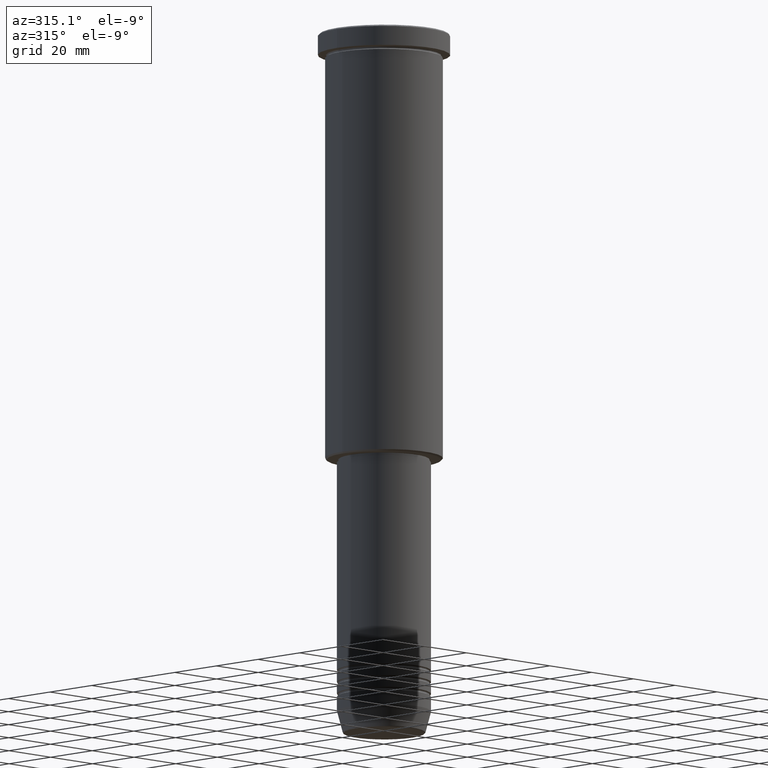
[diagram: clean part render]
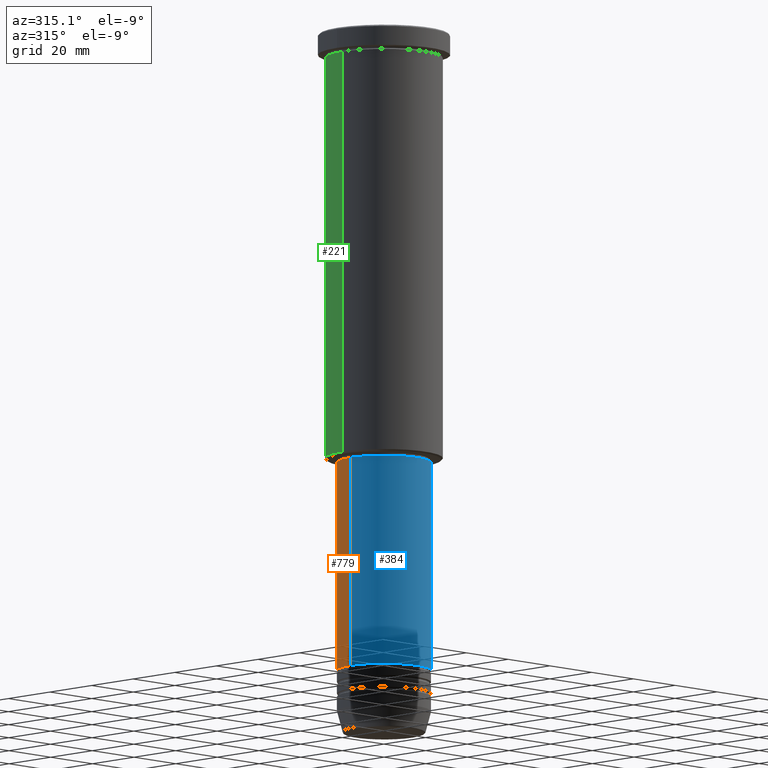
[diagram: same view with three faces highlighted in distinct colors, each labeled with its STEP entity id]
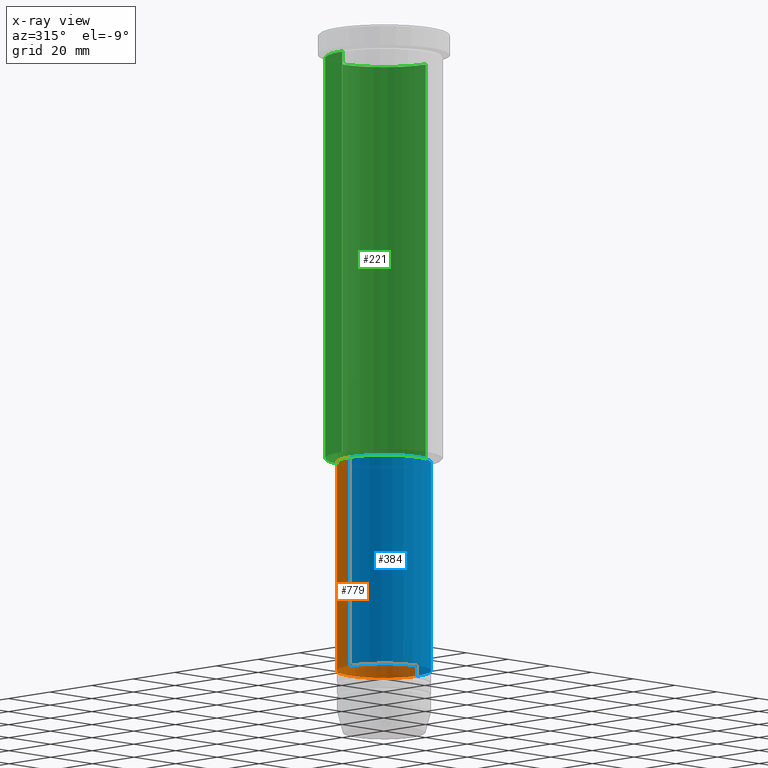
[diagram: x-ray of the same camera — body ghosted, the three highlighted faces saturated]
A machine part, auxiliary view with three faces highlighted in distinct colors.
The next image is the same camera in x-ray (body ghosted, the three faces saturated) — at least one of them is partly hidden behind the body in this view.
Their STEP definitions:

[orange] entity #779 — the highlighted cylindrical surface (partial cylindrical patch) has radius 16 mm, axis along (-0, -0, 1).
#25 = EDGE_CURVE ( 'NONE', #817, #1045, #538, .T. ) ;
#38 = DIRECTION ( 'NONE',  ( -0.000000000000000000, -0.000000000000000000, 1.000000000000000000 ) ) ;
#67 = DIRECTION ( 'NONE',  ( 1.000000000000000000, 0.000000000000000000, 0.000000000000000000 ) ) ;
#85 = CARTESIAN_POINT ( 'NONE',  ( 16.00000000000000000, 0.000000000000000000, -147.0000000000000000 ) ) ;
#96 = ORIENTED_EDGE ( 'NONE', *, *, #627, .F. ) ;
#97 = CIRCLE ( 'NONE', #331, 16.00000000000000000 ) ;
#129 = CARTESIAN_POINT ( 'NONE',  ( 0.000000000000000000, 0.000000000000000000, -147.0000000000000000 ) ) ;
#211 = DIRECTION ( 'NONE',  ( -0.000000000000000000, -0.000000000000000000, 1.000000000000000000 ) ) ;
#231 = CARTESIAN_POINT ( 'NONE',  ( -16.00000000000000000, 1.959434878635765131E-15, -147.0000000000000000 ) ) ;
#255 = AXIS2_PLACEMENT_3D ( 'NONE', #1012, #211, #563 ) ;
#266 = CARTESIAN_POINT ( 'NONE',  ( 16.00000000000000000, 0.000000000000000000, 0.000000000000000000 ) ) ;
#326 = EDGE_CURVE ( 'NONE', #1008, #1045, #97, .T. ) ;
#331 = AXIS2_PLACEMENT_3D ( 'NONE', #129, #38, #505 ) ;
#361 = ORIENTED_EDGE ( 'NONE', *, *, #326, .F. ) ;
#362 = CARTESIAN_POINT ( 'NONE',  ( -16.00000000000000000, 1.959434878635765131E-15, 0.000000000000000000 ) ) ;
#403 = LINE ( 'NONE', #266, #1171 ) ;
#451 = CARTESIAN_POINT ( 'NONE',  ( -16.00000000000000000, 1.959434878635765131E-15, -218.5000000000000000 ) ) ;
#505 = DIRECTION ( 'NONE',  ( 1.000000000000000000, 0.000000000000000000, 0.000000000000000000 ) ) ;
#513 = CARTESIAN_POINT ( 'NONE',  ( 16.00000000000000000, 0.000000000000000000, -218.5000000000000000 ) ) ;
#538 = LINE ( 'NONE', #362, #736 ) ;
#563 = DIRECTION ( 'NONE',  ( 1.000000000000000000, 0.000000000000000000, 0.000000000000000000 ) ) ;
#568 = ORIENTED_EDGE ( 'NONE', *, *, #25, .T. ) ;
#572 = EDGE_CURVE ( 'NONE', #761, #817, #1089, .T. ) ;
#627 = EDGE_CURVE ( 'NONE', #761, #1008, #403, .T. ) ;
#731 = DIRECTION ( 'NONE',  ( -0.000000000000000000, -0.000000000000000000, 1.000000000000000000 ) ) ;
#732 = EDGE_LOOP ( 'NONE', ( #861, #568, #361, #96 ) ) ;
#736 = VECTOR ( 'NONE', #731, 1000.000000000000000 ) ;
#761 = VERTEX_POINT ( 'NONE', #513 ) ;
#779 = ADVANCED_FACE ( 'NONE', ( #1060 ), #962, .T. ) ;
#817 = VERTEX_POINT ( 'NONE', #451 ) ;
#861 = ORIENTED_EDGE ( 'NONE', *, *, #572, .T. ) ;
#883 = CARTESIAN_POINT ( 'NONE',  ( 0.000000000000000000, 0.000000000000000000, 0.000000000000000000 ) ) ;
#938 = AXIS2_PLACEMENT_3D ( 'NONE', #883, #1068, #67 ) ;
#962 = CYLINDRICAL_SURFACE ( 'NONE', #938, 16.00000000000000000 ) ;
#984 = DIRECTION ( 'NONE',  ( -0.000000000000000000, -0.000000000000000000, 1.000000000000000000 ) ) ;
#1008 = VERTEX_POINT ( 'NONE', #85 ) ;
#1012 = CARTESIAN_POINT ( 'NONE',  ( 0.000000000000000000, 0.000000000000000000, -218.5000000000000000 ) ) ;
#1045 = VERTEX_POINT ( 'NONE', #231 ) ;
#1060 = FACE_OUTER_BOUND ( 'NONE', #732, .T. ) ;
#1068 = DIRECTION ( 'NONE',  ( -0.000000000000000000, -0.000000000000000000, 1.000000000000000000 ) ) ;
#1089 = CIRCLE ( 'NONE', #255, 16.00000000000000000 ) ;
#1171 = VECTOR ( 'NONE', #984, 1000.000000000000000 ) ;

[blue] entity #384 — the highlighted cylindrical surface (partial cylindrical patch) has radius 16 mm, axis along (-0, -0, 1).
#25 = EDGE_CURVE ( 'NONE', #817, #1045, #538, .T. ) ;
#85 = CARTESIAN_POINT ( 'NONE',  ( 16.00000000000000000, 0.000000000000000000, -147.0000000000000000 ) ) ;
#122 = ORIENTED_EDGE ( 'NONE', *, *, #627, .T. ) ;
#138 = DIRECTION ( 'NONE',  ( 1.000000000000000000, 0.000000000000000000, 0.000000000000000000 ) ) ;
#142 = AXIS2_PLACEMENT_3D ( 'NONE', #1159, #344, #711 ) ;
#147 = DIRECTION ( 'NONE',  ( -0.000000000000000000, -0.000000000000000000, 1.000000000000000000 ) ) ;
#150 = ORIENTED_EDGE ( 'NONE', *, *, #641, .T. ) ;
#231 = CARTESIAN_POINT ( 'NONE',  ( -16.00000000000000000, 1.959434878635765131E-15, -147.0000000000000000 ) ) ;
#266 = CARTESIAN_POINT ( 'NONE',  ( 16.00000000000000000, 0.000000000000000000, 0.000000000000000000 ) ) ;
#344 = DIRECTION ( 'NONE',  ( -0.000000000000000000, -0.000000000000000000, 1.000000000000000000 ) ) ;
#350 = AXIS2_PLACEMENT_3D ( 'NONE', #498, #147, #138 ) ;
#362 = CARTESIAN_POINT ( 'NONE',  ( -16.00000000000000000, 1.959434878635765131E-15, 0.000000000000000000 ) ) ;
#384 = ADVANCED_FACE ( 'NONE', ( #602 ), #794, .T. ) ;
#403 = LINE ( 'NONE', #266, #1171 ) ;
#408 = CARTESIAN_POINT ( 'NONE',  ( 0.000000000000000000, 0.000000000000000000, -147.0000000000000000 ) ) ;
#451 = CARTESIAN_POINT ( 'NONE',  ( -16.00000000000000000, 1.959434878635765131E-15, -218.5000000000000000 ) ) ;
#493 = CIRCLE ( 'NONE', #142, 16.00000000000000000 ) ;
#495 = AXIS2_PLACEMENT_3D ( 'NONE', #408, #653, #780 ) ;
#498 = CARTESIAN_POINT ( 'NONE',  ( 0.000000000000000000, 0.000000000000000000, 0.000000000000000000 ) ) ;
#513 = CARTESIAN_POINT ( 'NONE',  ( 16.00000000000000000, 0.000000000000000000, -218.5000000000000000 ) ) ;
#537 = ORIENTED_EDGE ( 'NONE', *, *, #906, .F. ) ;
#538 = LINE ( 'NONE', #362, #736 ) ;
#552 = ORIENTED_EDGE ( 'NONE', *, *, #25, .F. ) ;
#602 = FACE_OUTER_BOUND ( 'NONE', #1023, .T. ) ;
#627 = EDGE_CURVE ( 'NONE', #761, #1008, #403, .T. ) ;
#641 = EDGE_CURVE ( 'NONE', #817, #761, #493, .T. ) ;
#653 = DIRECTION ( 'NONE',  ( -0.000000000000000000, -0.000000000000000000, 1.000000000000000000 ) ) ;
#711 = DIRECTION ( 'NONE',  ( 1.000000000000000000, 0.000000000000000000, 0.000000000000000000 ) ) ;
#731 = DIRECTION ( 'NONE',  ( -0.000000000000000000, -0.000000000000000000, 1.000000000000000000 ) ) ;
#736 = VECTOR ( 'NONE', #731, 1000.000000000000000 ) ;
#761 = VERTEX_POINT ( 'NONE', #513 ) ;
#780 = DIRECTION ( 'NONE',  ( 1.000000000000000000, 0.000000000000000000, 0.000000000000000000 ) ) ;
#794 = CYLINDRICAL_SURFACE ( 'NONE', #350, 16.00000000000000000 ) ;
#817 = VERTEX_POINT ( 'NONE', #451 ) ;
#906 = EDGE_CURVE ( 'NONE', #1045, #1008, #1039, .T. ) ;
#984 = DIRECTION ( 'NONE',  ( -0.000000000000000000, -0.000000000000000000, 1.000000000000000000 ) ) ;
#1008 = VERTEX_POINT ( 'NONE', #85 ) ;
#1023 = EDGE_LOOP ( 'NONE', ( #552, #150, #122, #537 ) ) ;
#1039 = CIRCLE ( 'NONE', #495, 16.00000000000000000 ) ;
#1045 = VERTEX_POINT ( 'NONE', #231 ) ;
#1159 = CARTESIAN_POINT ( 'NONE',  ( 0.000000000000000000, 0.000000000000000000, -218.5000000000000000 ) ) ;
#1171 = VECTOR ( 'NONE', #984, 1000.000000000000000 ) ;

[green] entity #221 — the highlighted cylindrical surface (partial cylindrical patch) has radius 20 mm, axis along (-0, -0, 1).
#36 = ORIENTED_EDGE ( 'NONE', *, *, #510, .F. ) ;
#37 = VERTEX_POINT ( 'NONE', #184 ) ;
#59 = CARTESIAN_POINT ( 'NONE',  ( 0.000000000000000000, 0.000000000000000000, 0.000000000000000000 ) ) ;
#134 = DIRECTION ( 'NONE',  ( 1.000000000000000000, 0.000000000000000000, 0.000000000000000000 ) ) ;
#137 = LINE ( 'NONE', #865, #162 ) ;
#148 = CARTESIAN_POINT ( 'NONE',  ( 20.00000000000000355, 0.000000000000000000, -145.5000000000000000 ) ) ;
#151 = EDGE_CURVE ( 'NONE', #1061, #797, #137, .T. ) ;
#162 = VECTOR ( 'NONE', #1136, 1000.000000000000000 ) ;
#184 = CARTESIAN_POINT ( 'NONE',  ( -20.00000000000000355, 2.449293598294706907E-15, -145.5000000000000000 ) ) ;
#221 = ADVANCED_FACE ( 'NONE', ( #247 ), #828, .T. ) ;
#247 = FACE_OUTER_BOUND ( 'NONE', #958, .T. ) ;
#252 = DIRECTION ( 'NONE',  ( -0.000000000000000000, -0.000000000000000000, 1.000000000000000000 ) ) ;
#298 = CIRCLE ( 'NONE', #435, 20.00000000000000000 ) ;
#321 = VERTEX_POINT ( 'NONE', #427 ) ;
#343 = CARTESIAN_POINT ( 'NONE',  ( 0.000000000000000000, 0.000000000000000000, -145.5000000000000000 ) ) ;
#355 = LINE ( 'NONE', #1160, #905 ) ;
#427 = CARTESIAN_POINT ( 'NONE',  ( -20.00000000000000000, 2.449293598294706513E-15, -7.999999999999994671 ) ) ;
#435 = AXIS2_PLACEMENT_3D ( 'NONE', #671, #1130, #134 ) ;
#510 = EDGE_CURVE ( 'NONE', #797, #321, #298, .T. ) ;
#521 = ORIENTED_EDGE ( 'NONE', *, *, #1161, .T. ) ;
#664 = DIRECTION ( 'NONE',  ( -0.000000000000000000, -0.000000000000000000, 1.000000000000000000 ) ) ;
#671 = CARTESIAN_POINT ( 'NONE',  ( 0.000000000000000000, 0.000000000000000000, -7.999999999999994671 ) ) ;
#690 = DIRECTION ( 'NONE',  ( -1.000000000000000000, 0.000000000000000000, 0.000000000000000000 ) ) ;
#694 = DIRECTION ( 'NONE',  ( 1.000000000000000000, 0.000000000000000000, 0.000000000000000000 ) ) ;
#745 = AXIS2_PLACEMENT_3D ( 'NONE', #343, #664, #690 ) ;
#797 = VERTEX_POINT ( 'NONE', #1156 ) ;
#825 = ORIENTED_EDGE ( 'NONE', *, *, #1044, .T. ) ;
#828 = CYLINDRICAL_SURFACE ( 'NONE', #951, 20.00000000000000355 ) ;
#856 = ORIENTED_EDGE ( 'NONE', *, *, #151, .F. ) ;
#865 = CARTESIAN_POINT ( 'NONE',  ( 20.00000000000000355, 0.000000000000000000, 0.000000000000000000 ) ) ;
#905 = VECTOR ( 'NONE', #252, 1000.000000000000000 ) ;
#951 = AXIS2_PLACEMENT_3D ( 'NONE', #59, #1178, #694 ) ;
#958 = EDGE_LOOP ( 'NONE', ( #521, #825, #36, #856 ) ) ;
#1044 = EDGE_CURVE ( 'NONE', #37, #321, #355, .T. ) ;
#1061 = VERTEX_POINT ( 'NONE', #148 ) ;
#1092 = CIRCLE ( 'NONE', #745, 20.00000000000000355 ) ;
#1130 = DIRECTION ( 'NONE',  ( -0.000000000000000000, -0.000000000000000000, 1.000000000000000000 ) ) ;
#1136 = DIRECTION ( 'NONE',  ( -0.000000000000000000, -0.000000000000000000, 1.000000000000000000 ) ) ;
#1156 = CARTESIAN_POINT ( 'NONE',  ( 20.00000000000000000, 0.000000000000000000, -7.999999999999994671 ) ) ;
#1160 = CARTESIAN_POINT ( 'NONE',  ( -20.00000000000000355, 2.449293598294706907E-15, 0.000000000000000000 ) ) ;
#1161 = EDGE_CURVE ( 'NONE', #1061, #37, #1092, .T. ) ;
#1178 = DIRECTION ( 'NONE',  ( -0.000000000000000000, -0.000000000000000000, 1.000000000000000000 ) ) ;